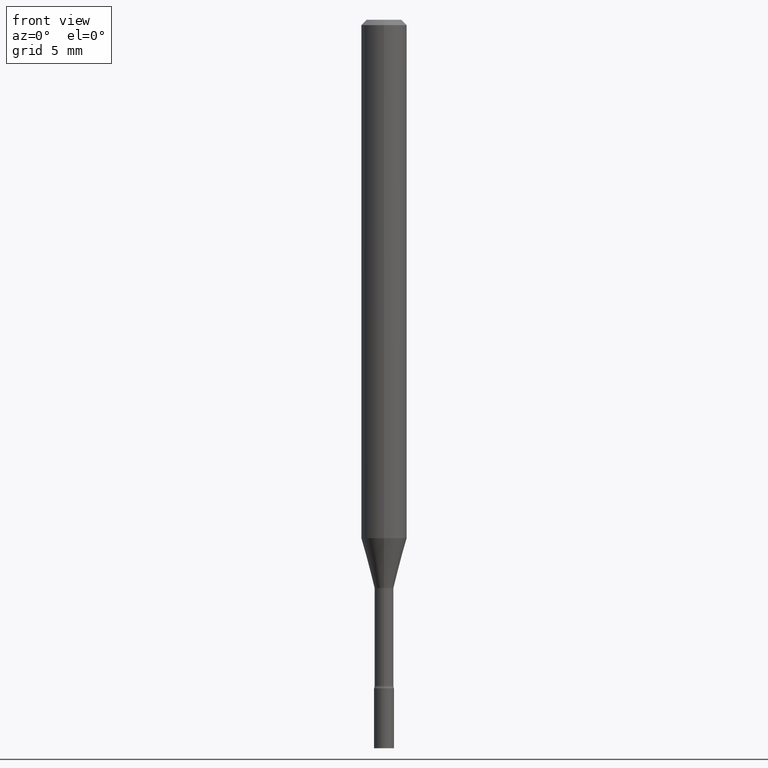
[diagram: clean part render]
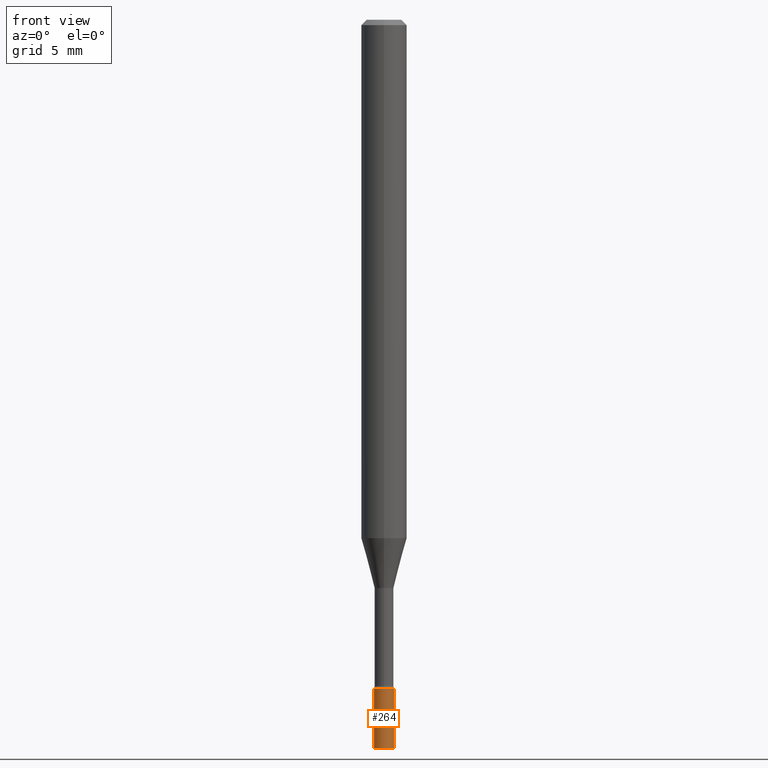
[diagram: same view with one face highlighted and labeled with its STEP entity id]
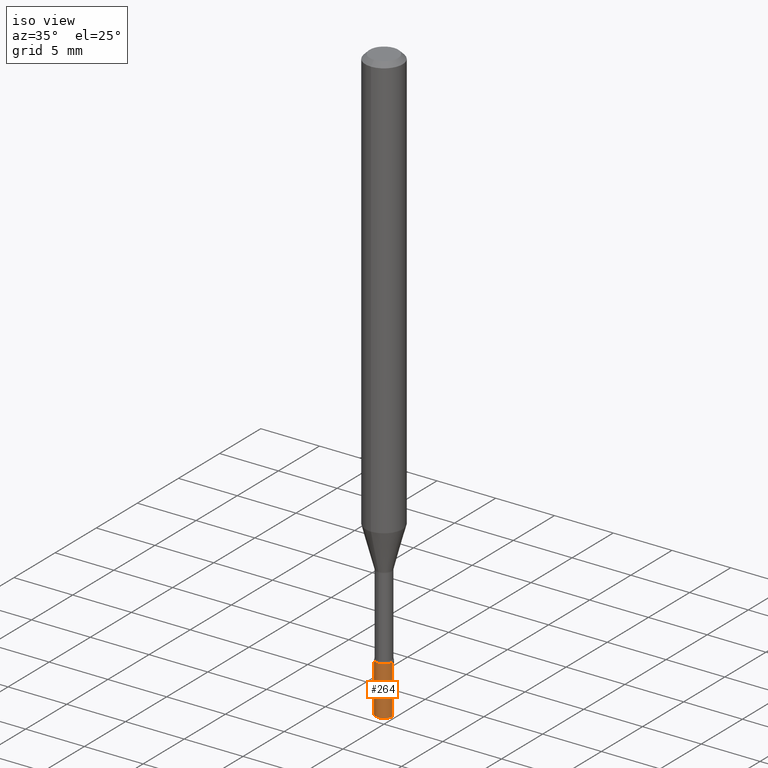
[diagram: same view with one face highlighted and labeled with its STEP entity id]
A machine part, front view. The second image highlights one B-rep face of the part: STEP entity #264.
A second angle (iso view) of the same face is appended — the face is thin or edge-on in the first view.
In plain terms, the highlighted cylindrical surface (edge-blend (fillet) strip) has radius 0.6985 mm, axis along (-0, 0, 1).
Its self-contained STEP definition (entity closure, byte-faithful):
#4 = VECTOR ( 'NONE', #499, 39.37007874015748143 ) ;
#9 = DIRECTION ( 'NONE',  ( 1.000000000000000000, -6.982962677686266711E-15, 4.876176775795935793E-29 ) ) ;
#35 = EDGE_CURVE ( 'NONE', #135, #62, #132, .T. ) ;
#38 = CIRCLE ( 'NONE', #147, 0.02750000000000000014 ) ;
#50 = DIRECTION ( 'NONE',  ( -2.445468806185136597E-29, 3.491481338843145583E-15, 1.000000000000000000 ) ) ;
#54 = CARTESIAN_POINT ( 'NONE',  ( 0.000000000000000000, 0.000000000000000000, 0.000000000000000000 ) ) ;
#62 = VERTEX_POINT ( 'NONE', #156 ) ;
#75 = CARTESIAN_POINT ( 'NONE',  ( -0.02750000000000000014, -6.499516214897703913E-15, -2.000000000000000000 ) ) ;
#118 = VERTEX_POINT ( 'NONE', #308 ) ;
#132 = LINE ( 'NONE', #409, #4 ) ;
#135 = VERTEX_POINT ( 'NONE', #75 ) ;
#147 = AXIS2_PLACEMENT_3D ( 'NONE', #440, #50, #175 ) ;
#156 = CARTESIAN_POINT ( 'NONE',  ( -0.02750000000000000014, -6.499516214897703913E-15, -1.834999999999999964 ) ) ;
#168 = VECTOR ( 'NONE', #431, 39.37007874015748143 ) ;
#175 = DIRECTION ( 'NONE',  ( 1.000000000000000000, -6.982962677686279332E-15, 0.000000000000000000 ) ) ;
#177 = AXIS2_PLACEMENT_3D ( 'NONE', #321, #242, #471 ) ;
#214 = EDGE_CURVE ( 'NONE', #118, #294, #266, .T. ) ;
#216 = ORIENTED_EDGE ( 'NONE', *, *, #35, .F. ) ;
#219 = CARTESIAN_POINT ( 'NONE',  ( 0.02750000000000000014, -1.920314736363723444E-16, 1.340948613343882413E-30 ) ) ;
#242 = DIRECTION ( 'NONE',  ( -2.445468806185136597E-29, 3.491481338843145583E-15, 1.000000000000000000 ) ) ;
#253 = ORIENTED_EDGE ( 'NONE', *, *, #433, .F. ) ;
#258 = EDGE_CURVE ( 'NONE', #135, #118, #403, .T. ) ;
#264 = ADVANCED_FACE ( 'NONE', ( #291 ), #337, .T. ) ;
#266 = LINE ( 'NONE', #219, #168 ) ;
#291 = FACE_OUTER_BOUND ( 'NONE', #464, .T. ) ;
#294 = VERTEX_POINT ( 'NONE', #356 ) ;
#308 = CARTESIAN_POINT ( 'NONE',  ( 0.02750000000000000014, -7.174994151322663658E-15, -2.000000000000000000 ) ) ;
#321 = CARTESIAN_POINT ( 'NONE',  ( 4.890937612370273194E-29, -6.982962677686291165E-15, -2.000000000000000000 ) ) ;
#327 = DIRECTION ( 'NONE',  ( -2.445468806185136597E-29, 3.491481338843145583E-15, 1.000000000000000000 ) ) ;
#337 = CYLINDRICAL_SURFACE ( 'NONE', #436, 0.02750000000000000014 ) ;
#343 = ORIENTED_EDGE ( 'NONE', *, *, #214, .T. ) ;
#356 = CARTESIAN_POINT ( 'NONE',  ( 0.02750000000000000014, -6.598899730413544603E-15, -1.834999999999999964 ) ) ;
#403 = CIRCLE ( 'NONE', #177, 0.02750000000000000014 ) ;
#409 = CARTESIAN_POINT ( 'NONE',  ( -0.02750000000000000014, 1.953992523340275521E-16, -1.352707149820099181E-30 ) ) ;
#431 = DIRECTION ( 'NONE',  ( -2.445468806185136877E-29, 3.491481338843145188E-15, 1.000000000000000000 ) ) ;
#433 = EDGE_CURVE ( 'NONE', #62, #294, #38, .T. ) ;
#436 = AXIS2_PLACEMENT_3D ( 'NONE', #54, #327, #9 ) ;
#440 = CARTESIAN_POINT ( 'NONE',  ( 4.487435259349726059E-29, -6.406868256777172111E-15, -1.834999999999999964 ) ) ;
#457 = ORIENTED_EDGE ( 'NONE', *, *, #258, .T. ) ;
#464 = EDGE_LOOP ( 'NONE', ( #216, #457, #343, #253 ) ) ;
#471 = DIRECTION ( 'NONE',  ( 1.000000000000000000, -6.982962677686279332E-15, 0.000000000000000000 ) ) ;
#499 = DIRECTION ( 'NONE',  ( -2.445468806185136877E-29, 3.491481338843145188E-15, 1.000000000000000000 ) ) ;